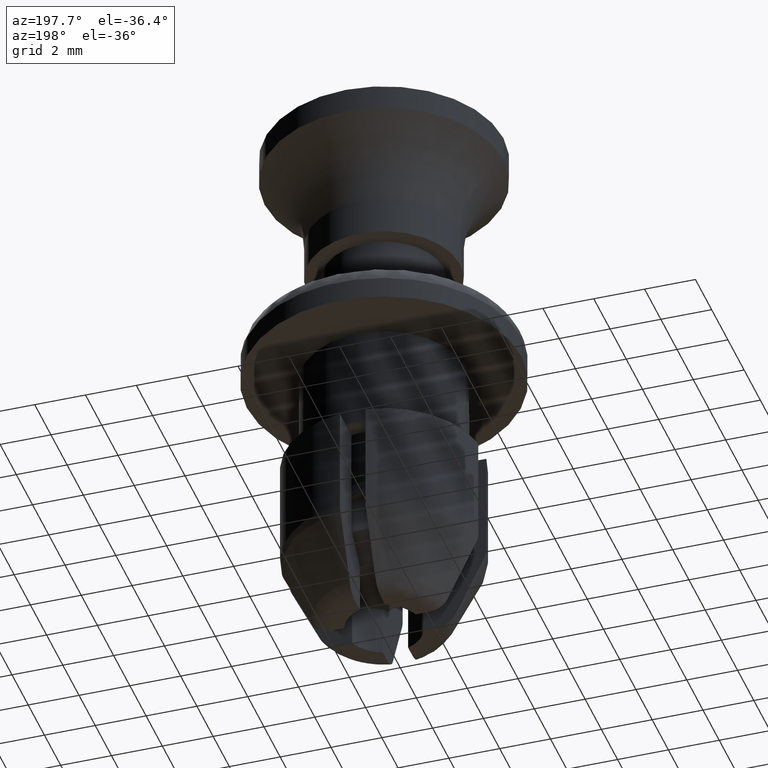
[diagram: clean part render]
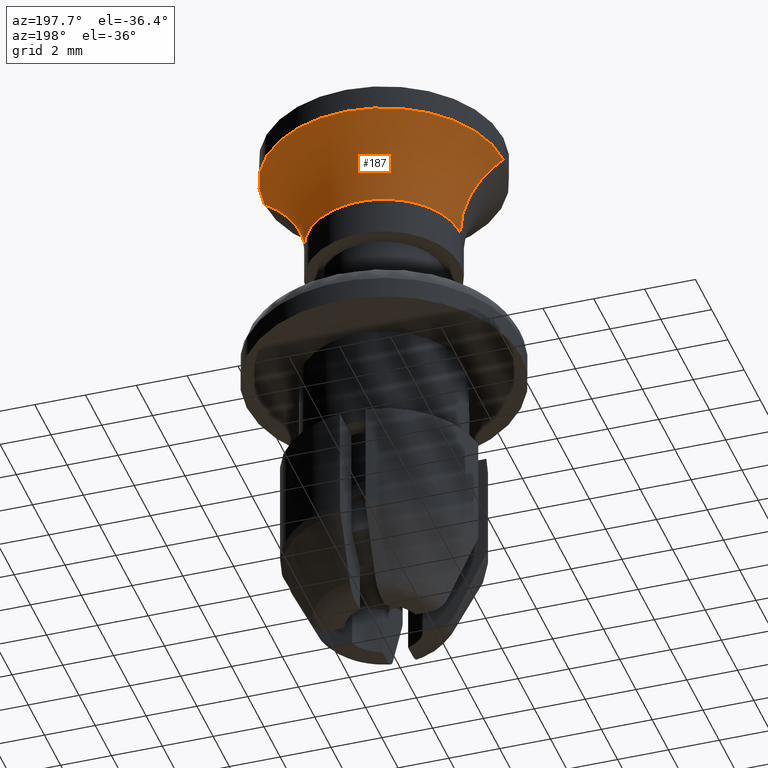
[diagram: same view with one face highlighted and labeled with its STEP entity id]
A machine part, auxiliary view. The second image highlights one B-rep face of the part: STEP entity #187.
In plain terms, the highlighted face is a freeform B-spline surface patch.
Its self-contained STEP definition (entity closure, byte-faithful):
#187=ADVANCED_FACE('',(#948),#947,.F.);
#947=( BOUNDED_SURFACE() B_SPLINE_SURFACE( 2,2,((#1568,#1569,#1570,#1571,#1572),(#1573,#1574,#1575,#1576,#1577),(#1578,#1579,#1580,#1581,#1582),(#1583,#1584,#1585,#1586,#1587),(#1588,#1589,#1590,#1591,#1592)), .UNSPECIFIED.,.F.,.F.,.F.) B_SPLINE_SURFACE_WITH_KNOTS((3,2,3),(3,2,3),(0.00000000000E+00,5.00000000000E-01,1.00000000000E+00),(0.00000000000E+00,5.00000000000E-01,1.00000000000E+00), .UNSPECIFIED. ) GEOMETRIC_REPRESENTATION_ITEM() RATIONAL_B_SPLINE_SURFACE(((1.00000000000E+00,7.07106781187E-01,1.00000000000E+00,7.07106781187E-01,1.00000000000E+00),(7.07106781187E-01,5.00000000000E-01,7.07106781187E-01,5.00000000000E-01,7.07106781187E-01),(1.00000000000E+00,7.07106781187E-01,1.00000000000E+00,7.07106781187E-01,1.00000000000E+00),(7.07106781187E-01,5.00000000000E-01,7.07106781187E-01,5.00000000000E-01,7.07106781187E-01),(1.00000000000E+00,7.07106781187E-01,1.00000000000E+00,7.07106781187E-01,1.00000000000E+00))) REPRESENTATION_ITEM('') SURFACE() );
#948=FACE_OUTER_BOUND('',#1593,.T.);
#1568=CARTESIAN_POINT('',(-3.00000000000E+00,-1.21335974928E-20,1.49800000000E+00));
#1569=CARTESIAN_POINT('',(-3.00000000000E+00,-1.21335974928E-20,4.99800000000E+00));
#1570=CARTESIAN_POINT('',(-6.50000000000E+00,-2.62894612344E-20,4.99800000000E+00));
#1571=CARTESIAN_POINT('',(-1.00000000000E+01,-4.04453249759E-20,4.99800000000E+00));
#1572=CARTESIAN_POINT('',(-1.00000000000E+01,-4.04453249759E-20,1.49800000000E+00));
#1573=CARTESIAN_POINT('',(-3.00000000000E+00,3.00000000000E+00,1.49800000000E+00));
#1574=CARTESIAN_POINT('',(-3.00000000000E+00,3.00000000000E+00,4.99800000000E+00));
#1575=CARTESIAN_POINT('',(-6.50000000000E+00,6.50000000000E+00,4.99800000000E+00));
#1576=CARTESIAN_POINT('',(-1.00000000000E+01,1.00000000000E+01,4.99800000000E+00));
#1577=CARTESIAN_POINT('',(-1.00000000000E+01,1.00000000000E+01,1.49800000000E+00));
#1578=CARTESIAN_POINT('',(-1.83709153470E-16,3.00000000000E+00,1.49800000000E+00));
#1579=CARTESIAN_POINT('',(-1.83709153470E-16,3.00000000000E+00,4.99800000000E+00));
#1580=CARTESIAN_POINT('',(-3.98036499184E-16,6.50000000000E+00,4.99800000000E+00));
#1581=CARTESIAN_POINT('',(-6.12363844899E-16,1.00000000000E+01,4.99800000000E+00));
#1582=CARTESIAN_POINT('',(-6.12363844899E-16,1.00000000000E+01,1.49800000000E+00));
#1583=CARTESIAN_POINT('',(3.00000000000E+00,3.00000000000E+00,1.49800000000E+00));
#1584=CARTESIAN_POINT('',(3.00000000000E+00,3.00000000000E+00,4.99800000000E+00));
#1585=CARTESIAN_POINT('',(6.50000000000E+00,6.50000000000E+00,4.99800000000E+00));
#1586=CARTESIAN_POINT('',(1.00000000000E+01,1.00000000000E+01,4.99800000000E+00));
#1587=CARTESIAN_POINT('',(1.00000000000E+01,1.00000000000E+01,1.49800000000E+00));
#1588=CARTESIAN_POINT('',(3.00000000000E+00,3.67406173342E-16,1.49800000000E+00));
#1589=CARTESIAN_POINT('',(3.00000000000E+00,3.67406173342E-16,4.99800000000E+00));
#1590=CARTESIAN_POINT('',(6.50000000000E+00,7.96046708907E-16,4.99800000000E+00));
#1591=CARTESIAN_POINT('',(1.00000000000E+01,1.22468724447E-15,4.99800000000E+00));
#1592=CARTESIAN_POINT('',(1.00000000000E+01,1.22468724447E-15,1.49800000000E+00));
#1593=EDGE_LOOP('',(#1986,#1987,#1988,#1989));
#1986=ORIENTED_EDGE('',*,*,#2197,.T.);
#1987=ORIENTED_EDGE('',*,*,#2194,.F.);
#1988=ORIENTED_EDGE('',*,*,#2190,.F.);
#1989=ORIENTED_EDGE('',*,*,#2196,.T.);
#2190=EDGE_CURVE('',#3425,#3426,#3427,.T.);
#2194=EDGE_CURVE('',#3426,#3451,#3452,.T.);
#2196=EDGE_CURVE('',#3425,#3458,#3465,.T.);
#2197=EDGE_CURVE('',#3458,#3451,#3471,.T.);
#3425=VERTEX_POINT('',#4302);
#3426=VERTEX_POINT('',#4303);
#3427=CIRCLE('',#4307,3.00000000000E+00);
#3451=VERTEX_POINT('',#4316);
#3452=(BOUNDED_CURVE() B_SPLINE_CURVE(2,(#4317,#4318,#4319),.UNSPECIFIED.,.F.,.F.) B_SPLINE_CURVE_WITH_KNOTS((3,3),(0.00000000000E+00,3.24375852943E-01),.UNSPECIFIED.) CURVE() GEOMETRIC_REPRESENTATION_ITEM() RATIONAL_B_SPLINE_CURVE((1.00000000000E+00,8.09985024652E-01,8.66515128106E-01)) REPRESENTATION_ITEM('') );
#3458=VERTEX_POINT('',#4320);
#3465=(BOUNDED_CURVE() B_SPLINE_CURVE(2,(#4325,#4326,#4327),.UNSPECIFIED.,.F.,.F.) B_SPLINE_CURVE_WITH_KNOTS((3,3),(0.00000000000E+00,3.24375811853E-01),.UNSPECIFIED.) CURVE() GEOMETRIC_REPRESENTATION_ITEM() RATIONAL_B_SPLINE_CURVE((7.50000000000E-01,6.07488786542E-01,6.49886335338E-01)) REPRESENTATION_ITEM('') );
#3471=CIRCLE('',#4331,4.70000000000E+00);
#4302=CARTESIAN_POINT('',(-3.00000000000E+00,0.00000000000E+00,1.49800000000E+00));
#4303=CARTESIAN_POINT('',(3.00000000000E+00,-1.48029736617E-16,1.49800000000E+00));
#4304=CARTESIAN_POINT('',(0.00000000000E+00,0.00000000000E+00,1.49800000000E+00));
#4305=DIRECTION('',(-0.00000000000E+00,0.00000000000E+00,-1.00000000000E+00));
#4306=DIRECTION('',(-1.00000000000E+00,-1.22460635382E-16,0.00000000000E+00));
#4307=AXIS2_PLACEMENT_3D('',#4304,#4305,#4306);
#4316=CARTESIAN_POINT('',(4.70000000000E+00,0.00000000000E+00,4.49966620396E+00));
#4317=CARTESIAN_POINT('',(3.00000000000E+00,-3.67381906147E-16,1.49800000000E+00));
#4318=CARTESIAN_POINT('',(3.00000000000E+00,-3.67381906147E-16,3.48023239692E+00));
#4319=CARTESIAN_POINT('',(4.69999999750E+00,-5.75564985990E-16,4.49966620246E+00));
#4320=CARTESIAN_POINT('',(-4.70000000000E+00,0.00000000000E+00,4.49966620396E+00));
#4325=CARTESIAN_POINT('',(-3.00000000000E+00,4.44089209850E-16,1.49800000000E+00));
#4326=CARTESIAN_POINT('',(-3.00000000000E+00,5.48268403905E-16,3.48023208692E+00));
#4327=CARTESIAN_POINT('',(-4.69999959491E+00,7.28200668964E-16,4.49966596104E+00));
#4328=CARTESIAN_POINT('',(0.00000000000E+00,0.00000000000E+00,4.49966620396E+00));
#4329=DIRECTION('',(-0.00000000000E+00,0.00000000000E+00,-1.00000000000E+00));
#4330=DIRECTION('',(-1.00000000000E+00,-1.22460635382E-16,0.00000000000E+00));
#4331=AXIS2_PLACEMENT_3D('',#4328,#4329,#4330);